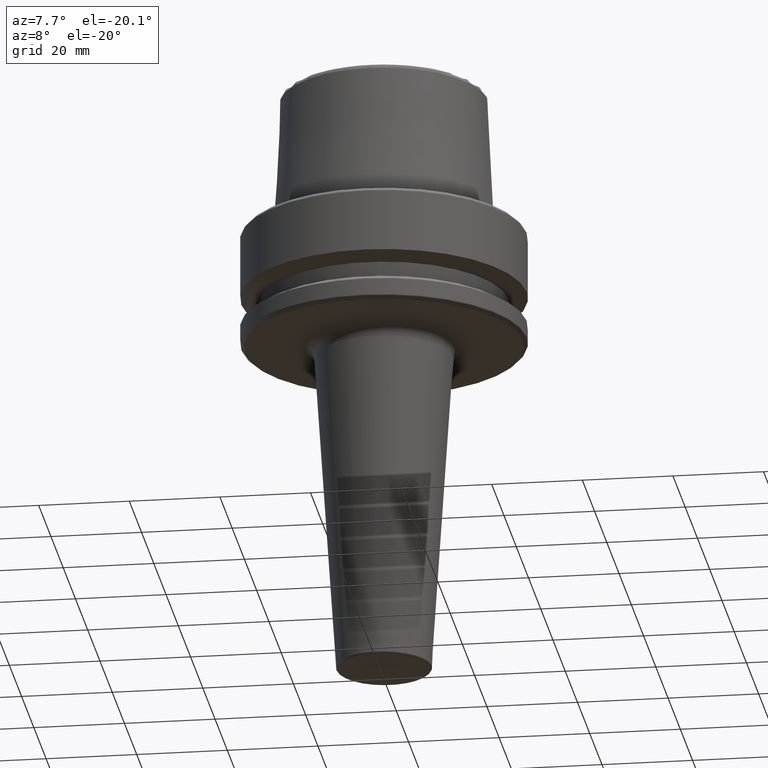
[diagram: clean part render]
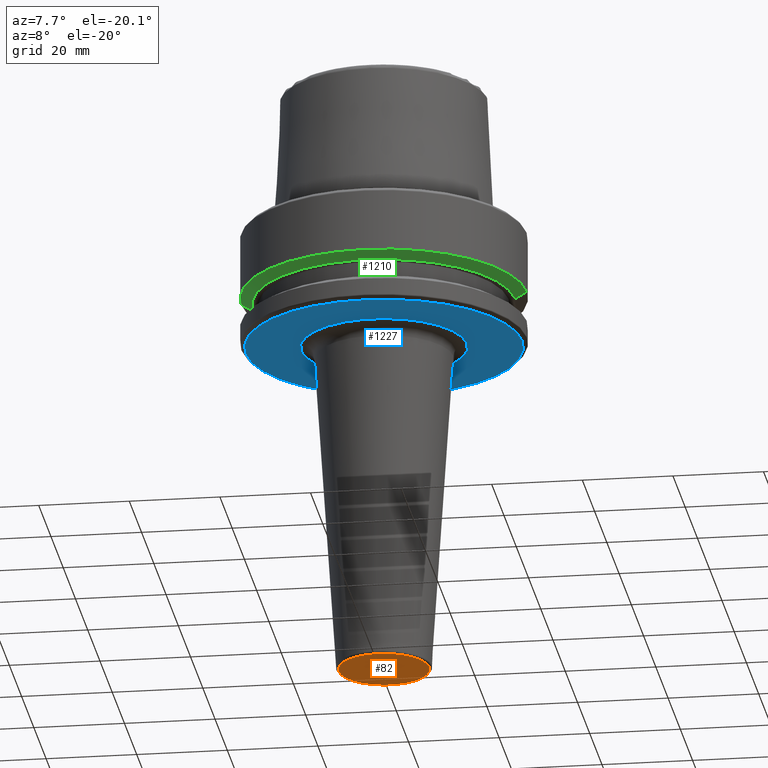
[diagram: same view with three faces highlighted in distinct colors, each labeled with its STEP entity id]
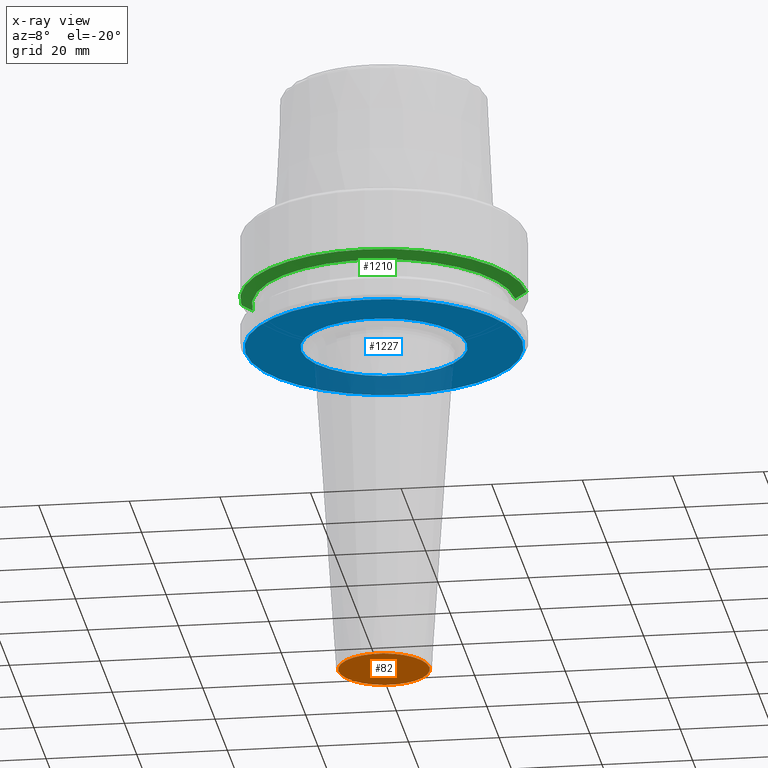
[diagram: x-ray of the same camera — body ghosted, the three highlighted faces saturated]
A machine part, auxiliary view with three faces highlighted in distinct colors.
The next image is the same camera in x-ray (body ghosted, the three faces saturated) — at least one of them is partly hidden behind the body in this view.
Their STEP definitions:

[orange] entity #82 — the highlighted planar face has unit normal (-0, 0, -1).
#9 = FACE_OUTER_BOUND ( 'NONE', #909, .T. ) ;
#82 = ADVANCED_FACE ( 'NONE', ( #9 ), #407, .T. ) ;
#112 = DIRECTION ( 'NONE',  ( -1.000000000000000000, 0.0000000000000000000, 0.0000000000000000000 ) ) ;
#113 = EDGE_CURVE ( 'NONE', #161, #1162, #464, .T. ) ;
#161 = VERTEX_POINT ( 'NONE', #913 ) ;
#175 = CARTESIAN_POINT ( 'NONE',  ( 0.0000000000000000000, 1.334911017704057700E-013, -101.0000000000000000 ) ) ;
#227 = CARTESIAN_POINT ( 'NONE',  ( 0.0000000000000000000, 0.0000000000000000000, -101.0000000000000000 ) ) ;
#407 = PLANE ( 'NONE',  #925 ) ;
#464 = CIRCLE ( 'NONE', #734, 10.03222345405423800 ) ;
#489 = CARTESIAN_POINT ( 'NONE',  ( 10.03222345405423800, 1.259141394128998500E-015, -101.0000000000000000 ) ) ;
#674 = ORIENTED_EDGE ( 'NONE', *, *, #113, .T. ) ;
#696 = DIRECTION ( 'NONE',  ( -0.0000000000000000000, -0.0000000000000000000, -1.000000000000000000 ) ) ;
#734 = AXIS2_PLACEMENT_3D ( 'NONE', #227, #940, #1083 ) ;
#793 = DIRECTION ( 'NONE',  ( -1.000000000000000000, 0.0000000000000000000, 0.0000000000000000000 ) ) ;
#876 = CIRCLE ( 'NONE', #1018, 10.03222345405423800 ) ;
#909 = EDGE_LOOP ( 'NONE', ( #674, #1072 ) ) ;
#913 = CARTESIAN_POINT ( 'NONE',  ( -10.03222345405423800, 0.0000000000000000000, -101.0000000000000000 ) ) ;
#925 = AXIS2_PLACEMENT_3D ( 'NONE', #175, #981, #793 ) ;
#940 = DIRECTION ( 'NONE',  ( -0.0000000000000000000, -0.0000000000000000000, -1.000000000000000000 ) ) ;
#949 = CARTESIAN_POINT ( 'NONE',  ( 0.0000000000000000000, 0.0000000000000000000, -101.0000000000000000 ) ) ;
#981 = DIRECTION ( 'NONE',  ( -0.0000000000000000000, 0.0000000000000000000, -1.000000000000000000 ) ) ;
#1018 = AXIS2_PLACEMENT_3D ( 'NONE', #949, #696, #112 ) ;
#1072 = ORIENTED_EDGE ( 'NONE', *, *, #1133, .T. ) ;
#1083 = DIRECTION ( 'NONE',  ( -1.000000000000000000, 0.0000000000000000000, 0.0000000000000000000 ) ) ;
#1133 = EDGE_CURVE ( 'NONE', #1162, #161, #876, .T. ) ;
#1162 = VERTEX_POINT ( 'NONE', #489 ) ;

[blue] entity #1227 — the highlighted planar face has unit normal (0, -0, 1).
#52 = CARTESIAN_POINT ( 'NONE',  ( 30.53431457505076500, 0.0000000000000000000, -26.00000000000001100 ) ) ;
#103 = FACE_BOUND ( 'NONE', #1022, .T. ) ;
#213 = CARTESIAN_POINT ( 'NONE',  ( -30.53431457505076500, 3.756694181974138600E-015, -26.00000000000001100 ) ) ;
#252 = VERTEX_POINT ( 'NONE', #213 ) ;
#258 = DIRECTION ( 'NONE',  ( -0.0000000000000000000, -0.0000000000000000000, 1.000000000000000000 ) ) ;
#266 = AXIS2_PLACEMENT_3D ( 'NONE', #1098, #635, #989 ) ;
#286 = DIRECTION ( 'NONE',  ( 1.000000000000000000, 0.0000000000000000000, 0.0000000000000000000 ) ) ;
#294 = CARTESIAN_POINT ( 'NONE',  ( 18.30665927567457300, 0.0000000000000000000, -26.00000000000000700 ) ) ;
#303 = DIRECTION ( 'NONE',  ( -0.0000000000000000000, -0.0000000000000000000, 1.000000000000000000 ) ) ;
#318 = ORIENTED_EDGE ( 'NONE', *, *, #1030, .T. ) ;
#352 = AXIS2_PLACEMENT_3D ( 'NONE', #1234, #583, #984 ) ;
#415 = ORIENTED_EDGE ( 'NONE', *, *, #555, .F. ) ;
#443 = CIRCLE ( 'NONE', #481, 30.53431457505076500 ) ;
#481 = AXIS2_PLACEMENT_3D ( 'NONE', #506, #303, #286 ) ;
#506 = CARTESIAN_POINT ( 'NONE',  ( 0.0000000000000000000, 0.0000000000000000000, -26.00000000000001100 ) ) ;
#548 = AXIS2_PLACEMENT_3D ( 'NONE', #927, #258, #1171 ) ;
#555 = EDGE_CURVE ( 'NONE', #252, #1038, #1198, .T. ) ;
#572 = DIRECTION ( 'NONE',  ( -0.0000000000000000000, -0.0000000000000000000, 1.000000000000000000 ) ) ;
#575 = VERTEX_POINT ( 'NONE', #294 ) ;
#583 = DIRECTION ( 'NONE',  ( 0.0000000000000000000, -0.0000000000000000000, 1.000000000000000000 ) ) ;
#628 = FACE_OUTER_BOUND ( 'NONE', #1159, .T. ) ;
#635 = DIRECTION ( 'NONE',  ( -0.0000000000000000000, -0.0000000000000000000, 1.000000000000000000 ) ) ;
#655 = EDGE_CURVE ( 'NONE', #1038, #252, #443, .T. ) ;
#715 = VERTEX_POINT ( 'NONE', #1005 ) ;
#717 = PLANE ( 'NONE',  #352 ) ;
#733 = DIRECTION ( 'NONE',  ( 1.000000000000000000, 0.0000000000000000000, 0.0000000000000000000 ) ) ;
#748 = CIRCLE ( 'NONE', #548, 18.30665927567457300 ) ;
#799 = ORIENTED_EDGE ( 'NONE', *, *, #655, .F. ) ;
#849 = ORIENTED_EDGE ( 'NONE', *, *, #947, .T. ) ;
#858 = AXIS2_PLACEMENT_3D ( 'NONE', #1206, #572, #733 ) ;
#927 = CARTESIAN_POINT ( 'NONE',  ( 0.0000000000000000000, 0.0000000000000000000, -26.00000000000000700 ) ) ;
#947 = EDGE_CURVE ( 'NONE', #575, #715, #1071, .T. ) ;
#984 = DIRECTION ( 'NONE',  ( 1.000000000000000000, 0.0000000000000000000, 0.0000000000000000000 ) ) ;
#989 = DIRECTION ( 'NONE',  ( 1.000000000000000000, 0.0000000000000000000, 0.0000000000000000000 ) ) ;
#1005 = CARTESIAN_POINT ( 'NONE',  ( -18.30665927567457300, 2.241919168503607100E-015, -26.00000000000000700 ) ) ;
#1022 = EDGE_LOOP ( 'NONE', ( #849, #318 ) ) ;
#1030 = EDGE_CURVE ( 'NONE', #715, #575, #748, .T. ) ;
#1038 = VERTEX_POINT ( 'NONE', #52 ) ;
#1071 = CIRCLE ( 'NONE', #858, 18.30665927567457300 ) ;
#1098 = CARTESIAN_POINT ( 'NONE',  ( 0.0000000000000000000, 0.0000000000000000000, -26.00000000000001100 ) ) ;
#1159 = EDGE_LOOP ( 'NONE', ( #799, #415 ) ) ;
#1171 = DIRECTION ( 'NONE',  ( 1.000000000000000000, 0.0000000000000000000, 0.0000000000000000000 ) ) ;
#1198 = CIRCLE ( 'NONE', #266, 30.53431457505076500 ) ;
#1206 = CARTESIAN_POINT ( 'NONE',  ( 0.0000000000000000000, 0.0000000000000000000, -26.00000000000000700 ) ) ;
#1227 = ADVANCED_FACE ( 'NONE', ( #103, #628 ), #717, .F. ) ;
#1234 = CARTESIAN_POINT ( 'NONE',  ( 0.0000000000000000000, 30.53431457505076500, -26.00000000000000700 ) ) ;

[green] entity #1210 — the highlighted conical surface has half-angle 60 deg.
#24 = CARTESIAN_POINT ( 'NONE',  ( -28.94089653438085100, 3.700937523921292900E-015, -16.10000000000001600 ) ) ;
#31 = CARTESIAN_POINT ( 'NONE',  ( 28.94089653438085100, 0.0000000000000000000, -16.10000000000001600 ) ) ;
#35 = CARTESIAN_POINT ( 'NONE',  ( 28.94089653438085100, 0.0000000000000000000, -16.10000000000001600 ) ) ;
#45 = CARTESIAN_POINT ( 'NONE',  ( 0.0000000000000000000, 0.0000000000000000000, -14.62250092524070100 ) ) ;
#104 = DIRECTION ( 'NONE',  ( 1.000000000000000000, 0.0000000000000000000, 0.0000000000000000000 ) ) ;
#121 = ORIENTED_EDGE ( 'NONE', *, *, #296, .F. ) ;
#145 = DIRECTION ( 'NONE',  ( 1.000000000000000000, 0.0000000000000000000, 0.0000000000000000000 ) ) ;
#188 = LINE ( 'NONE', #1248, #1187 ) ;
#189 = EDGE_CURVE ( 'NONE', #434, #642, #1036, .T. ) ;
#244 = AXIS2_PLACEMENT_3D ( 'NONE', #980, #735, #104 ) ;
#296 = EDGE_CURVE ( 'NONE', #394, #434, #188, .T. ) ;
#309 = DIRECTION ( 'NONE',  ( -0.8660254037844389300, 1.060575238724907300E-016, 0.4999999999999995000 ) ) ;
#323 = CARTESIAN_POINT ( 'NONE',  ( 31.50000000000000000, 0.0000000000000000000, -14.62250092524070100 ) ) ;
#330 = ORIENTED_EDGE ( 'NONE', *, *, #853, .T. ) ;
#334 = CONICAL_SURFACE ( 'NONE', #244, 28.94089653438085100, 1.047197551196598300 ) ;
#367 = FACE_OUTER_BOUND ( 'NONE', #560, .T. ) ;
#394 = VERTEX_POINT ( 'NONE', #24 ) ;
#434 = VERTEX_POINT ( 'NONE', #604 ) ;
#532 = EDGE_CURVE ( 'NONE', #394, #759, #1231, .T. ) ;
#560 = EDGE_LOOP ( 'NONE', ( #121, #892, #330, #1070 ) ) ;
#604 = CARTESIAN_POINT ( 'NONE',  ( -31.50000000000000000, 3.857637417314162700E-015, -14.62250092524070100 ) ) ;
#630 = DIRECTION ( 'NONE',  ( -0.0000000000000000000, -0.0000000000000000000, 1.000000000000000000 ) ) ;
#642 = VERTEX_POINT ( 'NONE', #323 ) ;
#672 = LINE ( 'NONE', #35, #698 ) ;
#698 = VECTOR ( 'NONE', #1053, 1000.000000000000000 ) ;
#735 = DIRECTION ( 'NONE',  ( -0.0000000000000000000, -0.0000000000000000000, 1.000000000000000000 ) ) ;
#738 = DIRECTION ( 'NONE',  ( -0.0000000000000000000, -0.0000000000000000000, 1.000000000000000000 ) ) ;
#759 = VERTEX_POINT ( 'NONE', #31 ) ;
#853 = EDGE_CURVE ( 'NONE', #759, #642, #672, .T. ) ;
#872 = AXIS2_PLACEMENT_3D ( 'NONE', #1105, #738, #145 ) ;
#892 = ORIENTED_EDGE ( 'NONE', *, *, #532, .T. ) ;
#980 = CARTESIAN_POINT ( 'NONE',  ( 0.0000000000000000000, 0.0000000000000000000, -16.10000000000001600 ) ) ;
#1036 = CIRCLE ( 'NONE', #1042, 31.50000000000000000 ) ;
#1042 = AXIS2_PLACEMENT_3D ( 'NONE', #45, #630, #1200 ) ;
#1053 = DIRECTION ( 'NONE',  ( 0.8660254037844389300, 0.0000000000000000000, 0.4999999999999995000 ) ) ;
#1070 = ORIENTED_EDGE ( 'NONE', *, *, #189, .F. ) ;
#1105 = CARTESIAN_POINT ( 'NONE',  ( 0.0000000000000000000, 0.0000000000000000000, -16.10000000000001600 ) ) ;
#1187 = VECTOR ( 'NONE', #309, 1000.000000000000000 ) ;
#1200 = DIRECTION ( 'NONE',  ( 1.000000000000000000, 0.0000000000000000000, 0.0000000000000000000 ) ) ;
#1210 = ADVANCED_FACE ( 'NONE', ( #367 ), #334, .T. ) ;
#1231 = CIRCLE ( 'NONE', #872, 28.94089653438085100 ) ;
#1248 = CARTESIAN_POINT ( 'NONE',  ( -28.94089653438085100, 3.544237630528423800E-015, -16.10000000000001600 ) ) ;